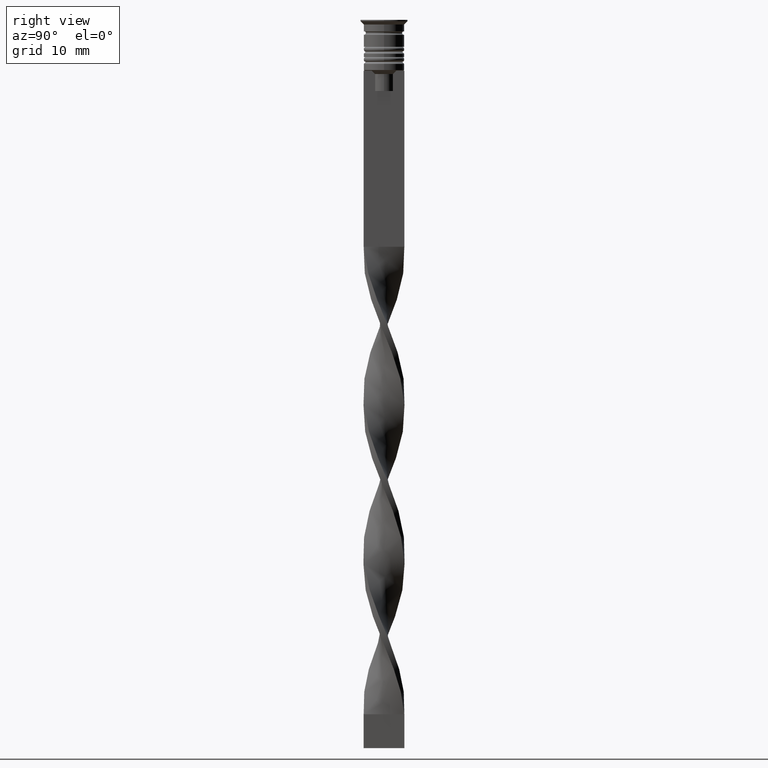
[diagram: clean part render]
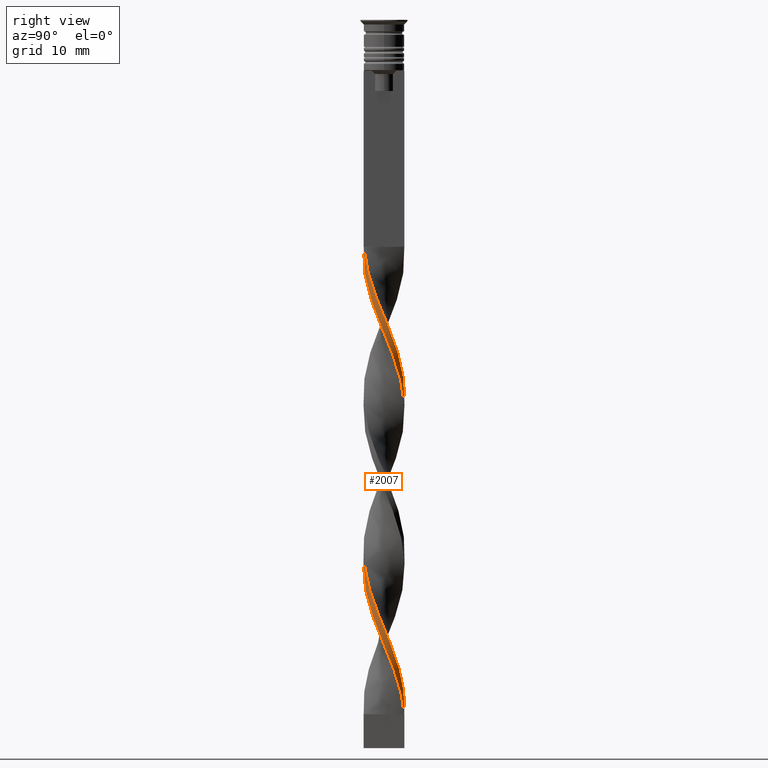
[diagram: same view with one face highlighted and labeled with its STEP entity id]
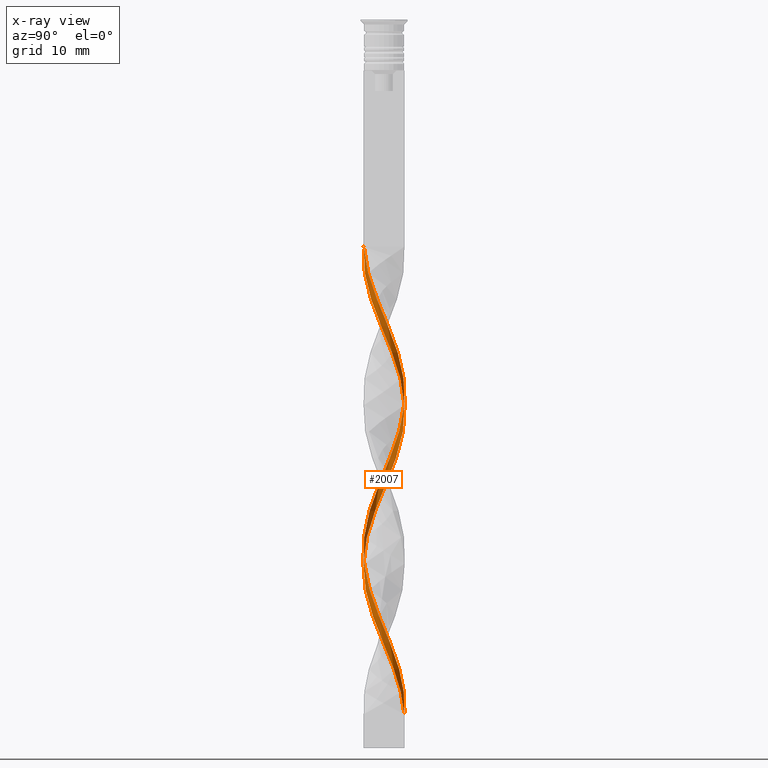
[diagram: x-ray of the same camera — body ghosted, the highlighted face saturated]
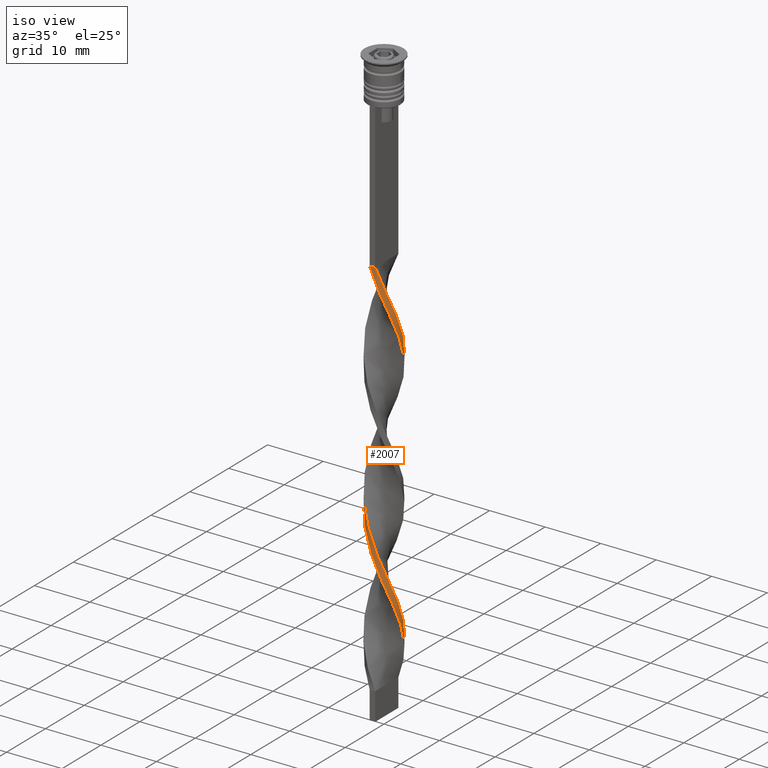
[diagram: same view with one face highlighted and labeled with its STEP entity id]
A machine part, right view. The second image highlights one B-rep face of the part: STEP entity #2007.
The next image is the same camera in x-ray: the body ghosted, the highlighted face saturated — about 0% of this face is hidden behind the body in this view.
A second angle (iso view) of the same face is appended — the face is thin or edge-on in the first view.
In plain terms, the highlighted face is a freeform B-spline surface patch.
Its self-contained STEP definition (entity closure, byte-faithful):
#3 = CARTESIAN_POINT ( 'NONE',  ( 0.8642659496667829400, 2.939289008388869640, -101.6153846153846132 ) ) ;
#20 = CARTESIAN_POINT ( 'NONE',  ( 2.363623348807936786, 1.913970915392904759, -97.19230769230770761 ) ) ;
#46 = CARTESIAN_POINT ( 'NONE',  ( -2.363623348807935898, 1.913970915392906536, -61.80769230769231370 ) ) ;
#56 = CARTESIAN_POINT ( 'NONE',  ( 2.752983971046547129, -1.292702307246639704, -40.57692307692308020 ) ) ;
#60 = CARTESIAN_POINT ( 'NONE',  ( -2.917858282166500672, -0.8579644778149938533, -68.88461538461538680 ) ) ;
#74 = VERTEX_POINT ( 'NONE', #251 ) ;
#75 = CARTESIAN_POINT ( 'NONE',  ( 3.022034030597048559, 0.5036723384328410935, -45.00000000000000711 ) ) ;
#81 = CARTESIAN_POINT ( 'NONE',  ( 0.2324760841496471830, -3.032483284421934933, -35.26923076923077360 ) ) ;
#108 = CARTESIAN_POINT ( 'NONE',  ( 0.8642659496667817187, -2.939289008388869640, -34.38461538461538680 ) ) ;
#113 = CARTESIAN_POINT ( 'NONE',  ( 2.596021493184669016, 1.626975080790204364, -50.30769230769231370 ) ) ;
#115 = EDGE_CURVE ( 'NONE', #360, #931, #577, .T. ) ;
#120 = CARTESIAN_POINT ( 'NONE',  ( 2.441810035334000872, 1.850388947743477397, -48.53846153846154721 ) ) ;
#122 = CARTESIAN_POINT ( 'NONE',  ( 1.928028413296782428, 2.380983398537112716, -96.30769230769232081 ) ) ;
#138 = CARTESIAN_POINT ( 'NONE',  ( -1.928028413296783983, -2.380983398537111828, -73.30769230769232081 ) ) ;
#144 = CARTESIAN_POINT ( 'NONE',  ( 0.1357340503332191695, 3.060710991611130360, -57.38461538461538680 ) ) ;
#151 = CARTESIAN_POINT ( 'NONE',  ( 2.441810035334000428, -1.850388947743478063, -87.46153846153849543 ) ) ;
#156 = CARTESIAN_POINT ( 'NONE',  ( 0.4999999999999998890, -3.000000000000000000, -79.50000000000001421 ) ) ;
#160 = CARTESIAN_POINT ( 'NONE',  ( 2.363623348807936786, 1.913970915392904759, -51.19230769230769340 ) ) ;
#163 = CARTESIAN_POINT ( 'NONE',  ( -2.596021493184669904, -1.626975080790202810, -73.30769230769232081 ) ) ;
#167 = CARTESIAN_POINT ( 'NONE',  ( 1.542569853484617060, -2.647046231879885081, -82.15384615384617462 ) ) ;
#171 = CARTESIAN_POINT ( 'NONE',  ( 2.813682533735953228, 1.212256617197150721, -92.76923076923075939 ) ) ;
#174 = CARTESIAN_POINT ( 'NONE',  ( -2.441810035333999540, 1.850388947743479395, -64.46153846153845279 ) ) ;
#182 = CARTESIAN_POINT ( 'NONE',  ( 2.917858282166500672, 0.8579644778149956297, -45.88461538461538680 ) ) ;
#187 = CARTESIAN_POINT ( 'NONE',  ( 0.2324760841496485153, 3.032483284421934489, -100.7307692307692406 ) ) ;
#193 = CARTESIAN_POINT ( 'NONE',  ( 2.813682533735953228, -1.212256617197151165, -89.23076923076924061 ) ) ;
#202 = CARTESIAN_POINT ( 'NONE',  ( 2.917858282166500228, -0.8579644778149968509, -90.11538461538462741 ) ) ;
#209 = CARTESIAN_POINT ( 'NONE',  ( 1.542569853484617948, 2.647046231879884193, -53.84615384615384670 ) ) ;
#212 = CARTESIAN_POINT ( 'NONE',  ( 0.1666666666666671293, 3.000000000000000000, -102.5000000000000142 ) ) ;
#251 = CARTESIAN_POINT ( 'NONE',  ( 0.4999999999999998890, -3.000000000000000000, -33.50000000000000000 ) ) ;
#257 = CARTESIAN_POINT ( 'NONE',  ( -1.203417901575701832, -2.793167620134376250, -77.73076923076924061 ) ) ;
#274 = CARTESIAN_POINT ( 'NONE',  ( 2.596021493184669016, 1.626975080790204142, -96.30769230769232081 ) ) ;
#311 = CARTESIAN_POINT ( 'NONE',  ( 2.363623348807935898, -1.913970915392906091, -38.80769230769230660 ) ) ;
#316 = CARTESIAN_POINT ( 'NONE',  ( -2.909946448908424799, 0.9584295337030754869, -64.46153846153845279 ) ) ;
#350 = CARTESIAN_POINT ( 'NONE',  ( 3.054755894246598658, -0.2341835458667260450, -43.23076923076922640 ) ) ;
#354 = VECTOR ( 'NONE', #462, 1000.000000000000000 ) ;
#356 = CARTESIAN_POINT ( 'NONE',  ( 2.982351171577512616, 0.5963065397848988924, -47.65384615384616041 ) ) ;
#360 = VERTEX_POINT ( 'NONE', #1284 ) ;
#372 = CARTESIAN_POINT ( 'NONE',  ( -2.131225204431203668, 2.200966749995606708, -60.92307692307691980 ) ) ;
#376 = CARTESIAN_POINT ( 'NONE',  ( 1.302196787976888093, -2.773203748730288520, -37.92307692307692690 ) ) ;
#382 = CARTESIAN_POINT ( 'NONE',  ( 3.038394962421823831, 0.1347443962830572051, -90.11538461538462741 ) ) ;
#384 = CARTESIAN_POINT ( 'NONE',  ( 0.6006862186325140351, 3.004255577232739949, -53.84615384615384670 ) ) ;
#391 = CARTESIAN_POINT ( 'NONE',  ( 1.615112600636834594, -2.577093573633701062, -38.80769230769230660 ) ) ;
#396 = CARTESIAN_POINT ( 'NONE',  ( 1.836897528957910364, -2.424006490937745451, -83.03846153846154721 ) ) ;
#401 = CARTESIAN_POINT ( 'NONE',  ( 3.022034030597048559, -0.5036723384328417596, -45.00000000000000711 ) ) ;
#409 = CARTESIAN_POINT ( 'NONE',  ( 2.184919224315390984, -2.115686173140296056, -40.57692307692308020 ) ) ;
#415 = CARTESIAN_POINT ( 'NONE',  ( 2.596021493184668572, -1.626975080790205919, -85.69230769230770761 ) ) ;
#421 = CARTESIAN_POINT ( 'NONE',  ( -2.441810035333999540, 1.850388947743479173, -64.46153846153845279 ) ) ;
#426 = CARTESIAN_POINT ( 'NONE',  ( 2.596021493184669016, 1.626975080790204364, -96.30769230769232081 ) ) ;
#431 = CARTESIAN_POINT ( 'NONE',  ( 2.184919224315391872, 2.115686173140295168, -49.42307692307693401 ) ) ;
#434 = CARTESIAN_POINT ( 'NONE',  ( 1.836897528957910364, -2.424006490937745451, -83.03846153846154721 ) ) ;
#438 = CARTESIAN_POINT ( 'NONE',  ( -1.203417901575701832, -2.793167620134376250, -77.73076923076924061 ) ) ;
#442 = CARTESIAN_POINT ( 'NONE',  ( 2.813682533735953228, 1.212256617197150721, -46.76923076923077360 ) ) ;
#447 = CARTESIAN_POINT ( 'NONE',  ( 0.9514415033047012304, 2.888729662981513346, -98.96153846153848122 ) ) ;
#454 = CARTESIAN_POINT ( 'NONE',  ( -1.928028413296780652, 2.380983398537114493, -62.69230769230770051 ) ) ;
#462 = DIRECTION ( 'NONE',  ( -1.000000000000000000, 0.000000000000000000, 0.000000000000000000 ) ) ;
#466 = CARTESIAN_POINT ( 'NONE',  ( 2.184919224315390984, -2.115686173140296056, -40.57692307692308020 ) ) ;
#475 = CARTESIAN_POINT ( 'NONE',  ( 0.5000000000000004441, 3.000000000000000000, -102.5000000000000142 ) ) ;
#488 = CARTESIAN_POINT ( 'NONE',  ( -2.131225204431204556, -2.200966749995605820, -75.07692307692308020 ) ) ;
#499 = CARTESIAN_POINT ( 'NONE',  ( -0.8642659496667833841, -2.939289008388869195, -78.61538461538461320 ) ) ;
#520 = CARTESIAN_POINT ( 'NONE',  ( 1.836897528957911030, 2.424006490937744562, -98.96153846153848122 ) ) ;
#540 = CARTESIAN_POINT ( 'NONE',  ( 0.9514415033047003423, -2.888729662981513790, -83.03846153846154721 ) ) ;
#573 = CARTESIAN_POINT ( 'NONE',  ( 2.131225204431203668, -2.200966749995606264, -37.92307692307692690 ) ) ;
#577 = B_SPLINE_CURVE_WITH_KNOTS ( 'NONE', 3,
 ( #3428, #1573, #212, #1274 ),
 .UNSPECIFIED., .F., .F.,
 ( 4, 4 ),
 ( 0.000000000000000000, 1.000000000000000000 ),
 .UNSPECIFIED. ) ;
#599 = CARTESIAN_POINT ( 'NONE',  ( 0.1357340503332165604, -3.060710991611130805, -78.61538461538461320 ) ) ;
#615 = CARTESIAN_POINT ( 'NONE',  ( 0.2324760841496485153, 3.032483284421934489, -54.73076923076923350 ) ) ;
#620 = CARTESIAN_POINT ( 'NONE',  ( 3.038394962421823386, -0.1347443962830584541, -45.88461538461538680 ) ) ;
#632 = CARTESIAN_POINT ( 'NONE',  ( -2.627746284534977050, -1.531322782470314170, -70.65384615384616041 ) ) ;
#648 = CARTESIAN_POINT ( 'NONE',  ( 1.203417901575699167, -2.793167620134377582, -81.26923076923077360 ) ) ;
#652 = CARTESIAN_POINT ( 'NONE',  ( 1.836897528957910364, -2.424006490937745451, -37.03846153846154010 ) ) ;
#662 = CARTESIAN_POINT ( 'NONE',  ( -2.752983971046547129, 1.292702307246639704, -63.57692307692308731 ) ) ;
#667 = CARTESIAN_POINT ( 'NONE',  ( 2.441810035334000872, 1.850388947743477175, -94.53846153846153300 ) ) ;
#672 = CARTESIAN_POINT ( 'NONE',  ( -0.1357340503332185033, -3.060710991611130360, -34.38461538461538680 ) ) ;
#676 = CARTESIAN_POINT ( 'NONE',  ( -2.917858282166500672, -0.8579644778149938533, -68.88461538461538680 ) ) ;
#679 = CARTESIAN_POINT ( 'NONE',  ( -1.615112600636834150, 2.577093573633701062, -61.80769230769231370 ) ) ;
#684 = CARTESIAN_POINT ( 'NONE',  ( -1.836897528957912584, -2.424006490937744118, -75.96153846153846700 ) ) ;
#692 = CARTESIAN_POINT ( 'NONE',  ( -0.9514415033047030068, -2.888729662981513346, -75.96153846153846700 ) ) ;
#694 = CARTESIAN_POINT ( 'NONE',  ( 0.4999999999999998890, -3.000000000000000000, -33.50000000000000000 ) ) ;
#697 = CARTESIAN_POINT ( 'NONE',  ( 2.627746284534977050, 1.531322782470313726, -93.65384615384617462 ) ) ;
#706 = CARTESIAN_POINT ( 'NONE',  ( 1.302196787976888759, 2.773203748730288076, -98.07692307692309441 ) ) ;
#711 = CARTESIAN_POINT ( 'NONE',  ( 1.615112600636835927, 2.577093573633700174, -97.19230769230770761 ) ) ;
#717 = CARTESIAN_POINT ( 'NONE',  ( 1.615112600636834594, -2.577093573633701062, -84.80769230769232081 ) ) ;
#726 = CARTESIAN_POINT ( 'NONE',  ( 0.8642659496667817187, -2.939289008388869640, -80.38461538461538680 ) ) ;
#732 = CARTESIAN_POINT ( 'NONE',  ( 2.909946448908426131, 0.9584295337030729334, -94.53846153846154721 ) ) ;
#750 = CARTESIAN_POINT ( 'NONE',  ( -1.615112600636834150, 2.577093573633701062, -61.80769230769231370 ) ) ;
#759 = CARTESIAN_POINT ( 'NONE',  ( -2.131225204431204556, -2.200966749995605820, -75.07692307692308020 ) ) ;
#796 = CARTESIAN_POINT ( 'NONE',  ( 0.6006862186325125919, -3.004255577232739949, -82.15384615384617462 ) ) ;
#817 = CARTESIAN_POINT ( 'NONE',  ( 0.5000000000000004441, 3.000000000000000000, -102.5000000000000142 ) ) ;
#839 = CARTESIAN_POINT ( 'NONE',  ( 2.909946448908425243, -0.9584295337030735995, -41.46153846153846700 ) ) ;
#857 = CARTESIAN_POINT ( 'NONE',  ( -0.9514415033047030068, -2.888729662981513346, -75.96153846153846700 ) ) ;
#871 = CARTESIAN_POINT ( 'NONE',  ( 2.909946448908425687, -0.9584295337030735995, -41.46153846153846700 ) ) ;
#876 = CARTESIAN_POINT ( 'NONE',  ( 2.363623348807935898, -1.913970915392906091, -38.80769230769230660 ) ) ;
#896 = CARTESIAN_POINT ( 'NONE',  ( 2.131225204431204556, 2.200966749995605820, -52.07692307692308020 ) ) ;
#900 = ORIENTED_EDGE ( 'NONE', *, *, #2523, .T. ) ;
#906 = CARTESIAN_POINT ( 'NONE',  ( 2.813682533735953228, 1.212256617197150721, -46.76923076923076650 ) ) ;
#923 = CARTESIAN_POINT ( 'NONE',  ( 2.627746284534977050, 1.531322782470313726, -47.65384615384616041 ) ) ;
#926 = CARTESIAN_POINT ( 'NONE',  ( 3.054755894246598658, 0.2341835458667255176, -46.76923076923076650 ) ) ;
#931 = VERTEX_POINT ( 'NONE', #1479 ) ;
#935 =( BOUNDED_CURVE ( )  B_SPLINE_CURVE ( 2, ( #2233, #1359, #2426, #1900, #2962, #573, #311, #2441, #56, #871, #3244, #2718, #2994, #2571, #182, #442, #923, #120, #431, #2509, #1176, #3315, #1494, #971, #3047, #1754, #2282, #3360, #987, #1245, #2314, #3377, #1505, #1983, #662, #1445, #2557, #1721, #3060, #1998, #676, #3096, #3076, #2034, #954, #138, #3330, #1481, #692, #3030, #2787, #1200, #156, #2248, #648, #167, #396, #1461, #2268, #415, #1227, #2527, #939, #1735, #382, #2820, #2803, #2832, #2546, #2296, #1214, #2016, #3345, #706, #1765, #1707, #2772, #2115, #3179 ),
 .UNSPECIFIED., .F., .T. ) 
 B_SPLINE_CURVE_WITH_KNOTS ( ( 3, 2, 2, 2, 2, 2, 2, 2, 2, 2, 2, 2, 2, 2, 2, 2, 2, 2, 2, 2, 2, 2, 2, 2, 2, 2, 2, 2, 2, 2, 2, 2, 2, 2, 2, 2, 2, 2, 2, 3 ),
 ( 0.000000000000000000, 0.01923076923076923184, 0.03846153846153846367, 0.05769230769230768857, 0.07692307692307692735, 0.09615384615384615918, 0.1153846153846153771, 0.1346153846153846090, 0.1538461538461538547, 0.1730769230769230449, 0.1923076923076923184, 0.2115384615384615363, 0.2307692307692307543, 0.2500000000000000000, 0.2692307692307692180, 0.2884615384615384359, 0.3076923076923077094, 0.3269230769230769273, 0.3461538461538460898, 0.3653846153846153633, 0.3846153846153846367, 0.4038461538461539102, 0.4230769230769230727, 0.4423076923076922906, 0.4615384615384615086, 0.4807692307692307820, 0.5000000000000000000, 0.5192307692307692735, 0.5384615384615384359, 0.5576923076923077094, 0.5769230769230768718, 0.5961538461538461453, 0.6153846153846154188, 0.6346153846153845812, 0.6538461538461538547, 0.6730769230769230171, 0.6923076923076921796, 0.7115384615384615641, 0.7307692307692307265, 0.7500000000000000000 ),
 .UNSPECIFIED. ) 
 CURVE ( )  GEOMETRIC_REPRESENTATION_ITEM ( )  RATIONAL_B_SPLINE_CURVE ( ( 1.000000000000000000, 0.9927088740980539727, 1.000000000000000000, 0.9927088740980539727, 1.000000000000000000, 0.9927088740980539727, 1.000000000000000000, 0.9927088740980539727, 1.000000000000000000, 0.9927088740980539727, 1.000000000000000000, 0.9927088740980539727, 1.000000000000000000, 0.9927088740980539727, 1.000000000000000000, 0.9927088740980539727, 1.000000000000000000, 0.9927088740980539727, 1.000000000000000000, 0.9927088740980539727, 1.000000000000000000, 0.9927088740980539727, 1.000000000000000000, 0.9927088740980539727, 1.000000000000000000, 0.9927088740980539727, 1.000000000000000000, 0.9927088740980539727, 1.000000000000000000, 0.9927088740980539727, 1.000000000000000000, 0.9927088740980539727, 1.000000000000000000, 0.9927088740980539727, 1.000000000000000000, 0.9927088740980539727, 1.000000000000000000, 0.9927088740980539727, 1.000000000000000000, 0.9927088740980539727, 1.000000000000000000, 0.9927088740980539727, 1.000000000000000000, 0.9927088740980539727, 1.000000000000000000, 0.9927088740980539727, 1.000000000000000000, 0.9927088740980539727, 1.000000000000000000, 0.9927088740980539727, 1.000000000000000000, 0.9927088740980539727, 1.000000000000000000, 0.9927088740980539727, 1.000000000000000000, 0.9927088740980539727, 1.000000000000000000, 0.9927088740980539727, 1.000000000000000000, 0.9927088740980539727, 1.000000000000000000, 0.9927088740980539727, 1.000000000000000000, 0.9927088740980539727, 1.000000000000000000, 0.9927088740980539727, 1.000000000000000000, 0.9927088740980539727, 1.000000000000000000, 0.9927088740980539727, 1.000000000000000000, 0.9927088740980539727, 1.000000000000000000, 0.9927088740980539727, 1.000000000000000000, 0.9927088740980539727, 1.000000000000000000, 0.9927088740980539727, 1.000000000000000000 ) ) 
 REPRESENTATION_ITEM ( '' )  );
#939 = CARTESIAN_POINT ( 'NONE',  ( 2.982351171577512172, -0.5963065397849001137, -88.34615384615385381 ) ) ;
#944 = CARTESIAN_POINT ( 'NONE',  ( -0.2324760841496461561, 3.032483284421934933, -58.26923076923077360 ) ) ;
#950 = CARTESIAN_POINT ( 'NONE',  ( -1.302196787976887871, 2.773203748730288964, -60.92307692307692690 ) ) ;
#954 = CARTESIAN_POINT ( 'NONE',  ( -2.184919224315392317, -2.115686173140294724, -72.42307692307691980 ) ) ;
#957 = CARTESIAN_POINT ( 'NONE',  ( -0.1357340503332169768, 3.060710991611130360, -101.6153846153846132 ) ) ;
#964 = CARTESIAN_POINT ( 'NONE',  ( 0.2324760841496471830, -3.032483284421934933, -81.26923076923077360 ) ) ;
#971 = CARTESIAN_POINT ( 'NONE',  ( 0.6006862186325140351, 3.004255577232739949, -53.84615384615384670 ) ) ;
#977 = CARTESIAN_POINT ( 'NONE',  ( 2.752983971046547129, -1.292702307246639704, -86.57692307692308020 ) ) ;
#982 = CARTESIAN_POINT ( 'NONE',  ( -0.2324760841496461561, 3.032483284421934933, -58.26923076923077360 ) ) ;
#987 = CARTESIAN_POINT ( 'NONE',  ( -1.203417901575698279, 2.793167620134377582, -58.26923076923077360 ) ) ;
#990 = CARTESIAN_POINT ( 'NONE',  ( 2.909946448908425243, -0.9584295337030735995, -87.46153846153849543 ) ) ;
#995 = CARTESIAN_POINT ( 'NONE',  ( 1.302196787976888093, -2.773203748730288520, -83.92307692307693401 ) ) ;
#1003 = CARTESIAN_POINT ( 'NONE',  ( 3.038394962421823386, -0.1347443962830584541, -91.88461538461540101 ) ) ;
#1008 = CARTESIAN_POINT ( 'NONE',  ( -2.813682533735953228, 1.212256617197151165, -66.23076923076922640 ) ) ;
#1052 = CARTESIAN_POINT ( 'NONE',  ( -2.917858282166500228, 0.8579644778149978501, -67.11538461538461320 ) ) ;
#1072 = CARTESIAN_POINT ( 'NONE',  ( 2.441810035334000428, -1.850388947743477841, -87.46153846153849543 ) ) ;
#1096 = CARTESIAN_POINT ( 'NONE',  ( -2.752983971046547129, 1.292702307246639704, -63.57692307692308731 ) ) ;
#1111 = CARTESIAN_POINT ( 'NONE',  ( -1.203417901575698279, 2.793167620134377582, -58.26923076923077360 ) ) ;
#1133 = CARTESIAN_POINT ( 'NONE',  ( 3.038394962421823831, 0.1347443962830572051, -44.11538461538462030 ) ) ;
#1138 = CARTESIAN_POINT ( 'NONE',  ( 2.813682533735953228, -1.212256617197151165, -43.23076923076923350 ) ) ;
#1166 = CARTESIAN_POINT ( 'NONE',  ( 1.203417901575699167, -2.793167620134377582, -35.26923076923077360 ) ) ;
#1176 = CARTESIAN_POINT ( 'NONE',  ( 1.615112600636835927, 2.577093573633700174, -51.19230769230769340 ) ) ;
#1181 = CARTESIAN_POINT ( 'NONE',  ( 2.813682533735953228, -1.212256617197151165, -43.23076923076922640 ) ) ;
#1200 = CARTESIAN_POINT ( 'NONE',  ( 0.1357340503332165882, -3.060710991611130805, -78.61538461538461320 ) ) ;
#1204 = CARTESIAN_POINT ( 'NONE',  ( 2.909946448908425687, 0.9584295337030729334, -48.53846153846154010 ) ) ;
#1209 = ORIENTED_EDGE ( 'NONE', *, *, #1273, .T. ) ;
#1210 = CARTESIAN_POINT ( 'NONE',  ( 2.627746284534976606, -1.531322782470315058, -88.34615384615385381 ) ) ;
#1214 = CARTESIAN_POINT ( 'NONE',  ( 2.184919224315391872, 2.115686173140295168, -95.42307692307693401 ) ) ;
#1219 = CARTESIAN_POINT ( 'NONE',  ( 1.542569853484617060, -2.647046231879885081, -82.15384615384617462 ) ) ;
#1222 = CARTESIAN_POINT ( 'NONE',  ( 0.9514415033047003423, -2.888729662981513790, -83.03846153846154721 ) ) ;
#1227 = CARTESIAN_POINT ( 'NONE',  ( 2.752983971046547129, -1.292702307246639704, -86.57692307692308020 ) ) ;
#1232 = CARTESIAN_POINT ( 'NONE',  ( 3.022034030597048559, 0.5036723384328410935, -91.00000000000001421 ) ) ;
#1238 = CARTESIAN_POINT ( 'NONE',  ( -2.184919224315390984, 2.115686173140296056, -63.57692307692308731 ) ) ;
#1245 = CARTESIAN_POINT ( 'NONE',  ( -1.542569853484615727, 2.647046231879885525, -59.15384615384616041 ) ) ;
#1251 = CARTESIAN_POINT ( 'NONE',  ( -0.5000000000000001110, -3.000000000000000000, -33.50000000000000000 ) ) ;
#1256 = CARTESIAN_POINT ( 'NONE',  ( 2.917858282166500228, -0.8579644778149968509, -90.11538461538462741 ) ) ;
#1264 = CARTESIAN_POINT ( 'NONE',  ( 1.542569853484618170, 2.647046231879884193, -99.84615384615385381 ) ) ;
#1271 = CARTESIAN_POINT ( 'NONE',  ( 1.203417901575700499, 2.793167620134376694, -54.73076923076923350 ) ) ;
#1273 = EDGE_CURVE ( 'NONE', #74, #2615, #1782, .T. ) ;
#1274 = CARTESIAN_POINT ( 'NONE',  ( 0.5000000000000004441, 3.000000000000000000, -102.5000000000000142 ) ) ;
#1283 =( BOUNDED_CURVE ( )  B_SPLINE_CURVE ( 2, ( #2539, #672, #81, #1977, #2746, #376, #391, #1439, #409, #1945, #3042, #1138, #2211, #3004, #620, #1472, #356, #2489, #2226, #113, #3292, #896, #3387, #209, #1271, #3402, #3138, #3372, #982, #2278, #2043, #950, #750, #454, #1238, #174, #2338, #1008, #2072, #2584, #3340, #2306, #2011, #3104, #1811, #163, #2878, #488, #684, #2324, #438, #1548, #3069, #1775, #964, #2842, #1222, #995, #717, #1501, #1516, #151, #1210, #193, #1256, #2565, #2057, #1745, #3118, #732, #2815, #426, #1490, #1760, #2554, #2291, #1792, #2860, #475 ),
 .UNSPECIFIED., .F., .T. ) 
 B_SPLINE_CURVE_WITH_KNOTS ( ( 3, 2, 2, 2, 2, 2, 2, 2, 2, 2, 2, 2, 2, 2, 2, 2, 2, 2, 2, 2, 2, 2, 2, 2, 2, 2, 2, 2, 2, 2, 2, 2, 2, 2, 2, 2, 2, 2, 2, 3 ),
 ( 0.000000000000000000, 0.01923076923076923184, 0.03846153846153846367, 0.05769230769230768857, 0.07692307692307692735, 0.09615384615384615918, 0.1153846153846153771, 0.1346153846153846090, 0.1538461538461538547, 0.1730769230769230449, 0.1923076923076923184, 0.2115384615384615363, 0.2307692307692307543, 0.2500000000000000000, 0.2692307692307692180, 0.2884615384615384359, 0.3076923076923077094, 0.3269230769230769273, 0.3461538461538460898, 0.3653846153846153633, 0.3846153846153846367, 0.4038461538461539102, 0.4230769230769230727, 0.4423076923076922906, 0.4615384615384615086, 0.4807692307692307820, 0.5000000000000000000, 0.5192307692307692735, 0.5384615384615384359, 0.5576923076923077094, 0.5769230769230768718, 0.5961538461538461453, 0.6153846153846154188, 0.6346153846153845812, 0.6538461538461538547, 0.6730769230769230171, 0.6923076923076921796, 0.7115384615384615641, 0.7307692307692307265, 0.7500000000000000000 ),
 .UNSPECIFIED. ) 
 CURVE ( )  GEOMETRIC_REPRESENTATION_ITEM ( )  RATIONAL_B_SPLINE_CURVE ( ( 1.000000000000000000, 0.9927088740980539727, 1.000000000000000000, 0.9927088740980539727, 1.000000000000000000, 0.9927088740980539727, 1.000000000000000000, 0.9927088740980539727, 1.000000000000000000, 0.9927088740980539727, 1.000000000000000000, 0.9927088740980539727, 1.000000000000000000, 0.9927088740980539727, 1.000000000000000000, 0.9927088740980539727, 1.000000000000000000, 0.9927088740980539727, 1.000000000000000000, 0.9927088740980539727, 1.000000000000000000, 0.9927088740980539727, 1.000000000000000000, 0.9927088740980539727, 1.000000000000000000, 0.9927088740980539727, 1.000000000000000000, 0.9927088740980539727, 1.000000000000000000, 0.9927088740980539727, 1.000000000000000000, 0.9927088740980539727, 1.000000000000000000, 0.9927088740980539727, 1.000000000000000000, 0.9927088740980539727, 1.000000000000000000, 0.9927088740980539727, 1.000000000000000000, 0.9927088740980539727, 1.000000000000000000, 0.9927088740980539727, 1.000000000000000000, 0.9927088740980539727, 1.000000000000000000, 0.9927088740980539727, 1.000000000000000000, 0.9927088740980539727, 1.000000000000000000, 0.9927088740980539727, 1.000000000000000000, 0.9927088740980539727, 1.000000000000000000, 0.9927088740980539727, 1.000000000000000000, 0.9927088740980539727, 1.000000000000000000, 0.9927088740980539727, 1.000000000000000000, 0.9927088740980539727, 1.000000000000000000, 0.9927088740980539727, 1.000000000000000000, 0.9927088740980539727, 1.000000000000000000, 0.9927088740980539727, 1.000000000000000000, 0.9927088740980539727, 1.000000000000000000, 0.9927088740980539727, 1.000000000000000000, 0.9927088740980539727, 1.000000000000000000, 0.9927088740980539727, 1.000000000000000000, 0.9927088740980539727, 1.000000000000000000, 0.9927088740980539727, 1.000000000000000000 ) ) 
 REPRESENTATION_ITEM ( '' )  );
#1284 = CARTESIAN_POINT ( 'NONE',  ( -0.4999999999999995559, 3.000000000000000000, -102.5000000000000142 ) ) ;
#1303 = CARTESIAN_POINT ( 'NONE',  ( 2.627746284534976606, -1.531322782470315058, -88.34615384615385381 ) ) ;
#1321 = CARTESIAN_POINT ( 'NONE',  ( -2.363623348807936786, -1.913970915392904315, -74.19230769230769340 ) ) ;
#1339 = CARTESIAN_POINT ( 'NONE',  ( -1.836897528957912584, -2.424006490937744118, -75.96153846153846700 ) ) ;
#1359 = CARTESIAN_POINT ( 'NONE',  ( 0.8642659496667816077, -2.939289008388869640, -34.38461538461538680 ) ) ;
#1397 = ORIENTED_EDGE ( 'NONE', *, *, #2224, .F. ) ;
#1419 = CARTESIAN_POINT ( 'NONE',  ( -2.982351171577512172, 0.5963065397849003357, -65.34615384615385381 ) ) ;
#1434 = CARTESIAN_POINT ( 'NONE',  ( -1.302196787976888759, -2.773203748730288076, -75.07692307692308020 ) ) ;
#1439 = CARTESIAN_POINT ( 'NONE',  ( 1.928028413296781762, -2.380983398537114049, -39.69230769230769340 ) ) ;
#1445 = CARTESIAN_POINT ( 'NONE',  ( -2.909946448908425243, 0.9584295337030753759, -64.46153846153845279 ) ) ;
#1448 = CARTESIAN_POINT ( 'NONE',  ( -1.542569853484615727, 2.647046231879885525, -59.15384615384616041 ) ) ;
#1461 = CARTESIAN_POINT ( 'NONE',  ( 2.131225204431203668, -2.200966749995606264, -83.92307692307693401 ) ) ;
#1465 = CARTESIAN_POINT ( 'NONE',  ( 3.038394962421823386, -0.1347443962830584541, -45.88461538461538680 ) ) ;
#1472 = CARTESIAN_POINT ( 'NONE',  ( 3.054755894246598658, 0.2341835458667255176, -46.76923076923077360 ) ) ;
#1479 = CARTESIAN_POINT ( 'NONE',  ( 0.5000000000000004441, 3.000000000000000000, -102.5000000000000142 ) ) ;
#1481 = CARTESIAN_POINT ( 'NONE',  ( -1.302196787976888759, -2.773203748730288076, -75.07692307692308020 ) ) ;
#1485 = CARTESIAN_POINT ( 'NONE',  ( 2.596021493184669016, 1.626975080790204142, -50.30769230769232081 ) ) ;
#1490 = CARTESIAN_POINT ( 'NONE',  ( 2.363623348807936786, 1.913970915392904759, -97.19230769230770761 ) ) ;
#1494 = CARTESIAN_POINT ( 'NONE',  ( 0.9514415033047012304, 2.888729662981513346, -52.96153846153845990 ) ) ;
#1498 = CARTESIAN_POINT ( 'NONE',  ( 1.615112600636834594, -2.577093573633701062, -38.80769230769230660 ) ) ;
#1501 = CARTESIAN_POINT ( 'NONE',  ( 1.928028413296781762, -2.380983398537114049, -85.69230769230770761 ) ) ;
#1505 = CARTESIAN_POINT ( 'NONE',  ( -2.363623348807935898, 1.913970915392906536, -61.80769230769231370 ) ) ;
#1509 = CARTESIAN_POINT ( 'NONE',  ( 0.6006862186325125919, -3.004255577232739949, -36.15384615384615330 ) ) ;
#1516 = CARTESIAN_POINT ( 'NONE',  ( 2.184919224315390984, -2.115686173140296056, -86.57692307692308020 ) ) ;
#1548 = CARTESIAN_POINT ( 'NONE',  ( -0.8642659496667834951, -2.939289008388869195, -78.61538461538461320 ) ) ;
#1558 = CARTESIAN_POINT ( 'NONE',  ( 2.752983971046547573, 1.292702307246638815, -95.42307692307693401 ) ) ;
#1573 = CARTESIAN_POINT ( 'NONE',  ( -0.1666666666666662411, 3.000000000000000000, -102.5000000000000142 ) ) ;
#1601 = CARTESIAN_POINT ( 'NONE',  ( 1.615112600636834594, -2.577093573633701062, -84.80769230769232081 ) ) ;
#1643 = CARTESIAN_POINT ( 'NONE',  ( -3.054755894246598658, 0.2341835458667258230, -66.23076923076922640 ) ) ;
#1661 = CARTESIAN_POINT ( 'NONE',  ( 0.4999999999999998890, -3.000000000000000000, -79.50000000000001421 ) ) ;
#1674 = CARTESIAN_POINT ( 'NONE',  ( -3.022034030597048559, -0.5036723384328407604, -68.00000000000000000 ) ) ;
#1693 = CARTESIAN_POINT ( 'NONE',  ( -2.184919224315392317, -2.115686173140294724, -72.42307692307691980 ) ) ;
#1707 = CARTESIAN_POINT ( 'NONE',  ( 0.6006862186325140351, 3.004255577232739949, -99.84615384615386802 ) ) ;
#1721 = CARTESIAN_POINT ( 'NONE',  ( -3.054755894246598658, 0.2341835458667258507, -66.23076923076922640 ) ) ;
#1724 = CARTESIAN_POINT ( 'NONE',  ( 0.5000000000000004441, 3.000000000000000000, -56.50000000000000711 ) ) ;
#1735 = CARTESIAN_POINT ( 'NONE',  ( 3.054755894246598658, -0.2341835458667260728, -89.23076923076924061 ) ) ;
#1740 = CARTESIAN_POINT ( 'NONE',  ( -2.184919224315390984, 2.115686173140296056, -63.57692307692308731 ) ) ;
#1745 = CARTESIAN_POINT ( 'NONE',  ( 3.054755894246598658, 0.2341835458667255176, -92.76923076923077360 ) ) ;
#1754 = CARTESIAN_POINT ( 'NONE',  ( -0.1357340503332169490, 3.060710991611130360, -55.61538461538462741 ) ) ;
#1757 = CARTESIAN_POINT ( 'NONE',  ( 2.982351171577512172, -0.5963065397849001137, -88.34615384615385381 ) ) ;
#1760 = CARTESIAN_POINT ( 'NONE',  ( 2.131225204431204556, 2.200966749995605820, -98.07692307692309441 ) ) ;
#1765 = CARTESIAN_POINT ( 'NONE',  ( 0.9514415033047012304, 2.888729662981513346, -98.96153846153848122 ) ) ;
#1769 = CARTESIAN_POINT ( 'NONE',  ( 2.917858282166500672, 0.8579644778149956297, -91.88461538461540101 ) ) ;
#1775 = CARTESIAN_POINT ( 'NONE',  ( -0.1357340503332185033, -3.060710991611130360, -80.38461538461538680 ) ) ;
#1782 = LINE ( 'NONE', #694, #354 ) ;
#1784 = CARTESIAN_POINT ( 'NONE',  ( 3.038394962421823831, 0.1347443962830572051, -90.11538461538462741 ) ) ;
#1792 = CARTESIAN_POINT ( 'NONE',  ( 1.203417901575700499, 2.793167620134376694, -100.7307692307692406 ) ) ;
#1811 = CARTESIAN_POINT ( 'NONE',  ( -2.752983971046547573, -1.292702307246638149, -72.42307692307691980 ) ) ;
#1838 = CARTESIAN_POINT ( 'NONE',  ( 2.982351171577512616, 0.5963065397848988924, -93.65384615384617462 ) ) ;
#1900 = CARTESIAN_POINT ( 'NONE',  ( 1.542569853484617060, -2.647046231879885081, -36.15384615384615330 ) ) ;
#1905 = CARTESIAN_POINT ( 'NONE',  ( -0.1357340503332169768, 3.060710991611130360, -55.61538461538462741 ) ) ;
#1923 = CARTESIAN_POINT ( 'NONE',  ( -0.6006862186325142572, -3.004255577232739949, -76.84615384615386802 ) ) ;
#1945 = CARTESIAN_POINT ( 'NONE',  ( 2.441810035334000428, -1.850388947743478063, -41.46153846153846700 ) ) ;
#1955 = CARTESIAN_POINT ( 'NONE',  ( 0.4999999999999998890, -3.000000000000000000, -33.50000000000000000 ) ) ;
#1972 = CARTESIAN_POINT ( 'NONE',  ( 2.627746284534977050, 1.531322782470313726, -47.65384615384616041 ) ) ;
#1977 = CARTESIAN_POINT ( 'NONE',  ( 0.6006862186325125919, -3.004255577232739949, -36.15384615384615330 ) ) ;
#1983 = CARTESIAN_POINT ( 'NONE',  ( -2.596021493184667683, 1.626975080790206141, -62.69230769230770051 ) ) ;
#1987 = CARTESIAN_POINT ( 'NONE',  ( 0.8642659496667829400, 2.939289008388869640, -55.61538461538462741 ) ) ;
#1998 = CARTESIAN_POINT ( 'NONE',  ( -3.022034030597048559, -0.5036723384328408715, -68.00000000000000000 ) ) ;
#2004 = CARTESIAN_POINT ( 'NONE',  ( -0.9514415033047003423, 2.888729662981513790, -60.03846153846154010 ) ) ;
#2007 = ADVANCED_FACE ( 'NONE', ( #3036 ), #2361, .T. ) ;
#2011 = CARTESIAN_POINT ( 'NONE',  ( -2.982351171577512616, -0.5963065397848993365, -70.65384615384616041 ) ) ;
#2016 = CARTESIAN_POINT ( 'NONE',  ( 1.928028413296782428, 2.380983398537112716, -96.30769230769232081 ) ) ;
#2021 = CARTESIAN_POINT ( 'NONE',  ( -2.627746284534976162, 1.531322782470315280, -65.34615384615385381 ) ) ;
#2034 = CARTESIAN_POINT ( 'NONE',  ( -2.441810035334001761, -1.850388947743476509, -71.53846153846154721 ) ) ;
#2037 = CARTESIAN_POINT ( 'NONE',  ( 0.2324760841496471830, -3.032483284421934933, -35.26923076923077360 ) ) ;
#2043 = CARTESIAN_POINT ( 'NONE',  ( -0.9514415033047003423, 2.888729662981513790, -60.03846153846154010 ) ) ;
#2052 = CARTESIAN_POINT ( 'NONE',  ( 3.054755894246598658, -0.2341835458667260450, -89.23076923076922640 ) ) ;
#2057 = CARTESIAN_POINT ( 'NONE',  ( 3.038394962421823386, -0.1347443962830584541, -91.88461538461540101 ) ) ;
#2064 = CARTESIAN_POINT ( 'NONE',  ( -2.752983971046547573, -1.292702307246638149, -72.42307692307691980 ) ) ;
#2068 = ORIENTED_EDGE ( 'NONE', *, *, #115, .F. ) ;
#2072 = CARTESIAN_POINT ( 'NONE',  ( -2.917858282166500228, 0.8579644778149978501, -67.11538461538461320 ) ) ;
#2084 = CARTESIAN_POINT ( 'NONE',  ( 0.2324760841496471830, -3.032483284421934933, -81.26923076923077360 ) ) ;
#2102 = CARTESIAN_POINT ( 'NONE',  ( -0.1357340503332185311, -3.060710991611130360, -80.38461538461538680 ) ) ;
#2107 = EDGE_LOOP ( 'NONE', ( #1209, #900, #2068, #1397 ) ) ;
#2115 = CARTESIAN_POINT ( 'NONE',  ( -0.1357340503332169490, 3.060710991611130360, -101.6153846153846274 ) ) ;
#2118 = CARTESIAN_POINT ( 'NONE',  ( -3.022034030597048559, 0.5036723384328420927, -68.00000000000000000 ) ) ;
#2139 = CARTESIAN_POINT ( 'NONE',  ( 3.054755894246598658, 0.2341835458667255176, -92.76923076923075939 ) ) ;
#2164 = CARTESIAN_POINT ( 'NONE',  ( 2.596021493184668572, -1.626975080790205697, -39.69230769230769340 ) ) ;
#2165 = CARTESIAN_POINT ( 'NONE',  ( -0.5000000000000001110, -3.000000000000000000, -33.50000000000000000 ) ) ;
#2182 = CARTESIAN_POINT ( 'NONE',  ( -2.813682533735954117, -1.212256617197149833, -69.76923076923077360 ) ) ;
#2204 = CARTESIAN_POINT ( 'NONE',  ( 0.9514415033047012304, 2.888729662981513346, -52.96153846153845990 ) ) ;
#2211 = CARTESIAN_POINT ( 'NONE',  ( 2.917858282166500228, -0.8579644778149968509, -44.11538461538462030 ) ) ;
#2221 = CARTESIAN_POINT ( 'NONE',  ( -0.4999999999999995559, 3.000000000000000000, -56.50000000000000711 ) ) ;
#2224 = EDGE_CURVE ( 'NONE', #74, #360, #935, .T. ) ;
#2226 = CARTESIAN_POINT ( 'NONE',  ( 2.752983971046547573, 1.292702307246638815, -49.42307692307693401 ) ) ;
#2233 = CARTESIAN_POINT ( 'NONE',  ( 0.4999999999999998890, -3.000000000000000000, -33.50000000000000000 ) ) ;
#2236 = CARTESIAN_POINT ( 'NONE',  ( 2.917858282166500672, 0.8579644778149956297, -45.88461538461538680 ) ) ;
#2248 = CARTESIAN_POINT ( 'NONE',  ( 0.8642659496667816077, -2.939289008388869640, -80.38461538461538680 ) ) ;
#2253 = CARTESIAN_POINT ( 'NONE',  ( 2.131225204431204556, 2.200966749995605820, -52.07692307692308020 ) ) ;
#2268 = CARTESIAN_POINT ( 'NONE',  ( 2.363623348807935898, -1.913970915392906091, -84.80769230769232081 ) ) ;
#2273 = CARTESIAN_POINT ( 'NONE',  ( 1.203417901575700499, 2.793167620134376694, -54.73076923076923350 ) ) ;
#2278 = CARTESIAN_POINT ( 'NONE',  ( -0.6006862186325113706, 3.004255577232740393, -59.15384615384616041 ) ) ;
#2282 = CARTESIAN_POINT ( 'NONE',  ( -0.4999999999999995559, 3.000000000000000000, -56.50000000000000711 ) ) ;
#2287 = CARTESIAN_POINT ( 'NONE',  ( -0.6006862186325113706, 3.004255577232740393, -59.15384615384616041 ) ) ;
#2291 = CARTESIAN_POINT ( 'NONE',  ( 1.542569853484617948, 2.647046231879884193, -99.84615384615386802 ) ) ;
#2296 = CARTESIAN_POINT ( 'NONE',  ( 2.441810035334000872, 1.850388947743477397, -94.53846153846154721 ) ) ;
#2300 = CARTESIAN_POINT ( 'NONE',  ( 1.302196787976887871, -2.773203748730288520, -37.92307692307692690 ) ) ;
#2306 = CARTESIAN_POINT ( 'NONE',  ( -3.054755894246599102, -0.2341835458667243242, -69.76923076923077360 ) ) ;
#2314 = CARTESIAN_POINT ( 'NONE',  ( -1.836897528957910364, 2.424006490937745451, -60.03846153846154010 ) ) ;
#2319 = CARTESIAN_POINT ( 'NONE',  ( 1.836897528957911030, 2.424006490937744562, -52.96153846153845990 ) ) ;
#2324 = CARTESIAN_POINT ( 'NONE',  ( -1.542569853484618170, -2.647046231879884193, -76.84615384615386802 ) ) ;
#2332 = CARTESIAN_POINT ( 'NONE',  ( -2.596021493184669904, -1.626975080790202810, -73.30769230769232081 ) ) ;
#2338 = CARTESIAN_POINT ( 'NONE',  ( -2.627746284534976162, 1.531322782470315280, -65.34615384615385381 ) ) ;
#2346 = CARTESIAN_POINT ( 'NONE',  ( -2.982351171577512616, -0.5963065397848993365, -70.65384615384616041 ) ) ;
#2361 =( BOUNDED_SURFACE ( )  B_SPLINE_SURFACE ( 1, 2, ( 
 ( #1955, #108, #1166, #3302, #652, #3274, #876, #2164, #2999, #839, #2775, #350, #1133, #75, #2236, #906, #1972, #2483, #3231, #2460, #3014, #2498, #2204, #384, #615, #1905, #2221, #2445, #1111, #1448, #2967, #372, #46, #2724, #1096, #316, #1419, #1643, #2708, #1674, #60, #2182, #632, #2741, #1693, #2760, #3247, #1434, #857, #1923, #2984, #599, #1661, #726, #2576, #1219, #434, #2561, #2823, #3083, #977, #990, #1757, #2052, #1784, #1232, #1769, #171, #697, #667, #2514, #122, #711, #2810, #447, #3334, #187, #957, #3050 ),
 ( #1251, #2790, #2037, #1509, #2532, #2300, #1498, #2837, #466, #3112, #2852, #1181, #3381, #401, #1465, #926, #3099, #1204, #2550, #1485, #160, #2253, #2319, #3319, #2273, #1987, #1724, #144, #944, #2287, #2004, #3064, #679, #3349, #1740, #421, #2021, #3366, #1052, #2118, #2927, #3183, #2346, #3396, #2064, #2332, #1321, #759, #1339, #3129, #257, #499, #2902, #2102, #2084, #796, #540, #2385, #1601, #2668, #2403, #1072, #1303, #2371, #202, #3434, #1003, #2139, #1838, #2628, #1558, #274, #20, #3209, #520, #1264, #2886, #3, #817 ) ),
 .UNSPECIFIED., .F., .F., .F. ) 
 B_SPLINE_SURFACE_WITH_KNOTS ( ( 2, 2 ),
 ( 3, 2, 2, 2, 2, 2, 2, 2, 2, 2, 2, 2, 2, 2, 2, 2, 2, 2, 2, 2, 2, 2, 2, 2, 2, 2, 2, 2, 2, 2, 2, 2, 2, 2, 2, 2, 2, 2, 2, 3 ),
 ( 0.000000000000000000, 1.000000000000000000 ),
 ( 0.000000000000000000, 0.01923076923076923184, 0.03846153846153846367, 0.05769230769230769551, 0.07692307692307692735, 0.09615384615384615918, 0.1153846153846153910, 0.1346153846153846090, 0.1538461538461538547, 0.1730769230769230727, 0.1923076923076923184, 0.2115384615384615363, 0.2307692307692307820, 0.2500000000000000000, 0.2692307692307692180, 0.2884615384615384359, 0.3076923076923077094, 0.3269230769230769273, 0.3461538461538461453, 0.3653846153846153633, 0.3846153846153846367, 0.4038461538461538547, 0.4230769230769230727, 0.4423076923076922906, 0.4615384615384615641, 0.4807692307692307820, 0.5000000000000000000, 0.5192307692307692735, 0.5384615384615384359, 0.5576923076923077094, 0.5769230769230768718, 0.5961538461538461453, 0.6153846153846154188, 0.6346153846153845812, 0.6538461538461538547, 0.6730769230769231282, 0.6923076923076922906, 0.7115384615384615641, 0.7307692307692307265, 0.7500000000000000000 ),
 .UNSPECIFIED. ) 
 GEOMETRIC_REPRESENTATION_ITEM ( )  RATIONAL_B_SPLINE_SURFACE ( (
 ( 1.000000000000000000, 0.9927088740980539727, 1.000000000000000000, 0.9927088740980539727, 1.000000000000000000, 0.9927088740980539727, 1.000000000000000000, 0.9927088740980539727, 1.000000000000000000, 0.9927088740980539727, 1.000000000000000000, 0.9927088740980539727, 1.000000000000000000, 0.9927088740980539727, 1.000000000000000000, 0.9927088740980539727, 1.000000000000000000, 0.9927088740980539727, 1.000000000000000000, 0.9927088740980539727, 1.000000000000000000, 0.9927088740980539727, 1.000000000000000000, 0.9927088740980539727, 1.000000000000000000, 0.9927088740980539727, 1.000000000000000000, 0.9927088740980539727, 1.000000000000000000, 0.9927088740980539727, 1.000000000000000000, 0.9927088740980539727, 1.000000000000000000, 0.9927088740980539727, 1.000000000000000000, 0.9927088740980539727, 1.000000000000000000, 0.9927088740980539727, 1.000000000000000000, 0.9927088740980539727, 1.000000000000000000, 0.9927088740980539727, 1.000000000000000000, 0.9927088740980539727, 1.000000000000000000, 0.9927088740980539727, 1.000000000000000000, 0.9927088740980539727, 1.000000000000000000, 0.9927088740980539727, 1.000000000000000000, 0.9927088740980539727, 1.000000000000000000, 0.9927088740980539727, 1.000000000000000000, 0.9927088740980539727, 1.000000000000000000, 0.9927088740980539727, 1.000000000000000000, 0.9927088740980539727, 1.000000000000000000, 0.9927088740980539727, 1.000000000000000000, 0.9927088740980539727, 1.000000000000000000, 0.9927088740980539727, 1.000000000000000000, 0.9927088740980539727, 1.000000000000000000, 0.9927088740980539727, 1.000000000000000000, 0.9927088740980539727, 1.000000000000000000, 0.9927088740980539727, 1.000000000000000000, 0.9927088740980539727, 1.000000000000000000, 0.9927088740980539727, 1.000000000000000000),
 ( 1.000000000000000000, 0.9927088740980539727, 1.000000000000000000, 0.9927088740980539727, 1.000000000000000000, 0.9927088740980539727, 1.000000000000000000, 0.9927088740980539727, 1.000000000000000000, 0.9927088740980539727, 1.000000000000000000, 0.9927088740980539727, 1.000000000000000000, 0.9927088740980539727, 1.000000000000000000, 0.9927088740980539727, 1.000000000000000000, 0.9927088740980539727, 1.000000000000000000, 0.9927088740980539727, 1.000000000000000000, 0.9927088740980539727, 1.000000000000000000, 0.9927088740980539727, 1.000000000000000000, 0.9927088740980539727, 1.000000000000000000, 0.9927088740980539727, 1.000000000000000000, 0.9927088740980539727, 1.000000000000000000, 0.9927088740980539727, 1.000000000000000000, 0.9927088740980539727, 1.000000000000000000, 0.9927088740980539727, 1.000000000000000000, 0.9927088740980539727, 1.000000000000000000, 0.9927088740980539727, 1.000000000000000000, 0.9927088740980539727, 1.000000000000000000, 0.9927088740980539727, 1.000000000000000000, 0.9927088740980539727, 1.000000000000000000, 0.9927088740980539727, 1.000000000000000000, 0.9927088740980539727, 1.000000000000000000, 0.9927088740980539727, 1.000000000000000000, 0.9927088740980539727, 1.000000000000000000, 0.9927088740980539727, 1.000000000000000000, 0.9927088740980539727, 1.000000000000000000, 0.9927088740980539727, 1.000000000000000000, 0.9927088740980539727, 1.000000000000000000, 0.9927088740980539727, 1.000000000000000000, 0.9927088740980539727, 1.000000000000000000, 0.9927088740980539727, 1.000000000000000000, 0.9927088740980539727, 1.000000000000000000, 0.9927088740980539727, 1.000000000000000000, 0.9927088740980539727, 1.000000000000000000, 0.9927088740980539727, 1.000000000000000000, 0.9927088740980539727, 1.000000000000000000) ) ) 
 REPRESENTATION_ITEM ( '' )  SURFACE ( )  );
#2371 = CARTESIAN_POINT ( 'NONE',  ( 2.813682533735953228, -1.212256617197151165, -89.23076923076922640 ) ) ;
#2385 = CARTESIAN_POINT ( 'NONE',  ( 1.302196787976887871, -2.773203748730288520, -83.92307692307691980 ) ) ;
#2403 = CARTESIAN_POINT ( 'NONE',  ( 2.184919224315390984, -2.115686173140296056, -86.57692307692308020 ) ) ;
#2426 = CARTESIAN_POINT ( 'NONE',  ( 1.203417901575699167, -2.793167620134377582, -35.26923076923077360 ) ) ;
#2441 = CARTESIAN_POINT ( 'NONE',  ( 2.596021493184668572, -1.626975080790205919, -39.69230769230769340 ) ) ;
#2445 = CARTESIAN_POINT ( 'NONE',  ( -0.8642659496667810526, 2.939289008388869640, -57.38461538461538680 ) ) ;
#2460 = CARTESIAN_POINT ( 'NONE',  ( 1.928028413296782428, 2.380983398537112716, -50.30769230769232081 ) ) ;
#2483 = CARTESIAN_POINT ( 'NONE',  ( 2.441810035334000872, 1.850388947743477175, -48.53846153846154010 ) ) ;
#2489 = CARTESIAN_POINT ( 'NONE',  ( 2.909946448908426131, 0.9584295337030729334, -48.53846153846154721 ) ) ;
#2498 = CARTESIAN_POINT ( 'NONE',  ( 1.302196787976888759, 2.773203748730288076, -52.07692307692308020 ) ) ;
#2509 = CARTESIAN_POINT ( 'NONE',  ( 1.928028413296782428, 2.380983398537112716, -50.30769230769231370 ) ) ;
#2514 = CARTESIAN_POINT ( 'NONE',  ( 2.184919224315391872, 2.115686173140295168, -95.42307692307693401 ) ) ;
#2523 = EDGE_CURVE ( 'NONE', #2615, #931, #1283, .T. ) ;
#2527 = CARTESIAN_POINT ( 'NONE',  ( 2.909946448908425687, -0.9584295337030735995, -87.46153846153849543 ) ) ;
#2532 = CARTESIAN_POINT ( 'NONE',  ( 0.9514415033047003423, -2.888729662981513790, -37.03846153846154010 ) ) ;
#2539 = CARTESIAN_POINT ( 'NONE',  ( -0.5000000000000001110, -3.000000000000000000, -33.50000000000000000 ) ) ;
#2546 = CARTESIAN_POINT ( 'NONE',  ( 2.627746284534977050, 1.531322782470313726, -93.65384615384617462 ) ) ;
#2550 = CARTESIAN_POINT ( 'NONE',  ( 2.752983971046547573, 1.292702307246638815, -49.42307692307693401 ) ) ;
#2554 = CARTESIAN_POINT ( 'NONE',  ( 1.836897528957911030, 2.424006490937744562, -98.96153846153848122 ) ) ;
#2557 = CARTESIAN_POINT ( 'NONE',  ( -2.982351171577512172, 0.5963065397849003357, -65.34615384615385381 ) ) ;
#2561 = CARTESIAN_POINT ( 'NONE',  ( 2.131225204431203668, -2.200966749995606264, -83.92307692307691980 ) ) ;
#2565 = CARTESIAN_POINT ( 'NONE',  ( 3.022034030597048559, -0.5036723384328417596, -91.00000000000001421 ) ) ;
#2571 = CARTESIAN_POINT ( 'NONE',  ( 3.022034030597048559, 0.5036723384328410935, -45.00000000000000711 ) ) ;
#2576 = CARTESIAN_POINT ( 'NONE',  ( 1.203417901575699167, -2.793167620134377582, -81.26923076923077360 ) ) ;
#2584 = CARTESIAN_POINT ( 'NONE',  ( -3.022034030597048559, 0.5036723384328420927, -68.00000000000000000 ) ) ;
#2615 = VERTEX_POINT ( 'NONE', #2165 ) ;
#2628 = CARTESIAN_POINT ( 'NONE',  ( 2.909946448908425687, 0.9584295337030729334, -94.53846153846153300 ) ) ;
#2668 = CARTESIAN_POINT ( 'NONE',  ( 1.928028413296781762, -2.380983398537113604, -85.69230769230770761 ) ) ;
#2708 = CARTESIAN_POINT ( 'NONE',  ( -3.038394962421823831, -0.1347443962830561781, -67.11538461538461320 ) ) ;
#2718 = CARTESIAN_POINT ( 'NONE',  ( 3.054755894246598658, -0.2341835458667260728, -43.23076923076923350 ) ) ;
#2724 = CARTESIAN_POINT ( 'NONE',  ( -2.596021493184667683, 1.626975080790206141, -62.69230769230770051 ) ) ;
#2741 = CARTESIAN_POINT ( 'NONE',  ( -2.441810035334001761, -1.850388947743476509, -71.53846153846154721 ) ) ;
#2746 = CARTESIAN_POINT ( 'NONE',  ( 0.9514415033047003423, -2.888729662981513790, -37.03846153846154010 ) ) ;
#2760 = CARTESIAN_POINT ( 'NONE',  ( -1.928028413296783983, -2.380983398537111828, -73.30769230769232081 ) ) ;
#2772 = CARTESIAN_POINT ( 'NONE',  ( 0.2324760841496485153, 3.032483284421934489, -100.7307692307692406 ) ) ;
#2775 = CARTESIAN_POINT ( 'NONE',  ( 2.982351171577512172, -0.5963065397849001137, -42.34615384615385381 ) ) ;
#2787 = CARTESIAN_POINT ( 'NONE',  ( -0.2324760841496502084, -3.032483284421934489, -77.73076923076924061 ) ) ;
#2790 = CARTESIAN_POINT ( 'NONE',  ( -0.1357340503332185311, -3.060710991611130360, -34.38461538461538680 ) ) ;
#2803 = CARTESIAN_POINT ( 'NONE',  ( 2.917858282166500672, 0.8579644778149956297, -91.88461538461540101 ) ) ;
#2810 = CARTESIAN_POINT ( 'NONE',  ( 1.302196787976888759, 2.773203748730288076, -98.07692307692308020 ) ) ;
#2815 = CARTESIAN_POINT ( 'NONE',  ( 2.752983971046547573, 1.292702307246638815, -95.42307692307693401 ) ) ;
#2820 = CARTESIAN_POINT ( 'NONE',  ( 3.022034030597048559, 0.5036723384328410935, -91.00000000000001421 ) ) ;
#2823 = CARTESIAN_POINT ( 'NONE',  ( 2.363623348807935898, -1.913970915392906091, -84.80769230769232081 ) ) ;
#2832 = CARTESIAN_POINT ( 'NONE',  ( 2.813682533735953228, 1.212256617197150721, -92.76923076923077360 ) ) ;
#2837 = CARTESIAN_POINT ( 'NONE',  ( 1.928028413296781762, -2.380983398537113604, -39.69230769230769340 ) ) ;
#2842 = CARTESIAN_POINT ( 'NONE',  ( 0.6006862186325125919, -3.004255577232739949, -82.15384615384617462 ) ) ;
#2852 = CARTESIAN_POINT ( 'NONE',  ( 2.627746284534976606, -1.531322782470315058, -42.34615384615385381 ) ) ;
#2860 = CARTESIAN_POINT ( 'NONE',  ( 0.8642659496667830510, 2.939289008388869640, -101.6153846153846274 ) ) ;
#2878 = CARTESIAN_POINT ( 'NONE',  ( -2.363623348807936786, -1.913970915392904315, -74.19230769230769340 ) ) ;
#2886 = CARTESIAN_POINT ( 'NONE',  ( 1.203417901575700499, 2.793167620134376694, -100.7307692307692406 ) ) ;
#2902 = CARTESIAN_POINT ( 'NONE',  ( -0.5000000000000001110, -3.000000000000000000, -79.50000000000001421 ) ) ;
#2927 = CARTESIAN_POINT ( 'NONE',  ( -3.038394962421823386, 0.1347443962830601472, -68.88461538461538680 ) ) ;
#2962 = CARTESIAN_POINT ( 'NONE',  ( 1.836897528957910364, -2.424006490937745451, -37.03846153846154010 ) ) ;
#2967 = CARTESIAN_POINT ( 'NONE',  ( -1.836897528957910364, 2.424006490937745451, -60.03846153846154010 ) ) ;
#2984 = CARTESIAN_POINT ( 'NONE',  ( -0.2324760841496502084, -3.032483284421934489, -77.73076923076924061 ) ) ;
#2994 = CARTESIAN_POINT ( 'NONE',  ( 3.038394962421823831, 0.1347443962830572051, -44.11538461538462030 ) ) ;
#2999 = CARTESIAN_POINT ( 'NONE',  ( 2.752983971046547129, -1.292702307246639704, -40.57692307692308020 ) ) ;
#3004 = CARTESIAN_POINT ( 'NONE',  ( 3.022034030597048559, -0.5036723384328417596, -45.00000000000000711 ) ) ;
#3014 = CARTESIAN_POINT ( 'NONE',  ( 1.615112600636835927, 2.577093573633700174, -51.19230769230769340 ) ) ;
#3030 = CARTESIAN_POINT ( 'NONE',  ( -0.6006862186325142572, -3.004255577232739949, -76.84615384615386802 ) ) ;
#3036 = FACE_OUTER_BOUND ( 'NONE', #2107, .T. ) ;
#3042 = CARTESIAN_POINT ( 'NONE',  ( 2.627746284534976606, -1.531322782470315058, -42.34615384615385381 ) ) ;
#3047 = CARTESIAN_POINT ( 'NONE',  ( 0.2324760841496485153, 3.032483284421934489, -54.73076923076923350 ) ) ;
#3050 = CARTESIAN_POINT ( 'NONE',  ( -0.4999999999999995559, 3.000000000000000000, -102.5000000000000142 ) ) ;
#3060 = CARTESIAN_POINT ( 'NONE',  ( -3.038394962421823831, -0.1347443962830561781, -67.11538461538461320 ) ) ;
#3064 = CARTESIAN_POINT ( 'NONE',  ( -1.302196787976887649, 2.773203748730288964, -60.92307692307691980 ) ) ;
#3069 = CARTESIAN_POINT ( 'NONE',  ( -0.5000000000000001110, -3.000000000000000000, -79.50000000000001421 ) ) ;
#3076 = CARTESIAN_POINT ( 'NONE',  ( -2.627746284534977050, -1.531322782470314170, -70.65384615384616041 ) ) ;
#3083 = CARTESIAN_POINT ( 'NONE',  ( 2.596021493184668572, -1.626975080790205697, -85.69230769230770761 ) ) ;
#3096 = CARTESIAN_POINT ( 'NONE',  ( -2.813682533735954117, -1.212256617197149833, -69.76923076923077360 ) ) ;
#3099 = CARTESIAN_POINT ( 'NONE',  ( 2.982351171577512616, 0.5963065397848988924, -47.65384615384616041 ) ) ;
#3104 = CARTESIAN_POINT ( 'NONE',  ( -2.909946448908426575, -0.9584295337030714901, -71.53846153846154721 ) ) ;
#3112 = CARTESIAN_POINT ( 'NONE',  ( 2.441810035334000428, -1.850388947743477841, -41.46153846153846700 ) ) ;
#3118 = CARTESIAN_POINT ( 'NONE',  ( 2.982351171577512616, 0.5963065397848988924, -93.65384615384617462 ) ) ;
#3129 = CARTESIAN_POINT ( 'NONE',  ( -1.542569853484618392, -2.647046231879884193, -76.84615384615386802 ) ) ;
#3138 = CARTESIAN_POINT ( 'NONE',  ( 0.5000000000000004441, 3.000000000000000000, -56.50000000000000711 ) ) ;
#3179 = CARTESIAN_POINT ( 'NONE',  ( -0.4999999999999995559, 3.000000000000000000, -102.5000000000000142 ) ) ;
#3183 = CARTESIAN_POINT ( 'NONE',  ( -3.054755894246599102, -0.2341835458667243519, -69.76923076923077360 ) ) ;
#3209 = CARTESIAN_POINT ( 'NONE',  ( 2.131225204431204556, 2.200966749995605820, -98.07692307692308020 ) ) ;
#3231 = CARTESIAN_POINT ( 'NONE',  ( 2.184919224315391872, 2.115686173140295168, -49.42307692307693401 ) ) ;
#3244 = CARTESIAN_POINT ( 'NONE',  ( 2.982351171577512172, -0.5963065397849001137, -42.34615384615385381 ) ) ;
#3247 = CARTESIAN_POINT ( 'NONE',  ( -1.615112600636836371, -2.577093573633699730, -74.19230769230769340 ) ) ;
#3274 = CARTESIAN_POINT ( 'NONE',  ( 2.131225204431203668, -2.200966749995606264, -37.92307692307692690 ) ) ;
#3292 = CARTESIAN_POINT ( 'NONE',  ( 2.363623348807936786, 1.913970915392904759, -51.19230769230769340 ) ) ;
#3302 = CARTESIAN_POINT ( 'NONE',  ( 1.542569853484617060, -2.647046231879885081, -36.15384615384615330 ) ) ;
#3315 = CARTESIAN_POINT ( 'NONE',  ( 1.302196787976888759, 2.773203748730288076, -52.07692307692308020 ) ) ;
#3319 = CARTESIAN_POINT ( 'NONE',  ( 1.542569853484618170, 2.647046231879884193, -53.84615384615384670 ) ) ;
#3330 = CARTESIAN_POINT ( 'NONE',  ( -1.615112600636836371, -2.577093573633699730, -74.19230769230769340 ) ) ;
#3334 = CARTESIAN_POINT ( 'NONE',  ( 0.6006862186325140351, 3.004255577232739949, -99.84615384615385381 ) ) ;
#3340 = CARTESIAN_POINT ( 'NONE',  ( -3.038394962421823386, 0.1347443962830601472, -68.88461538461538680 ) ) ;
#3345 = CARTESIAN_POINT ( 'NONE',  ( 1.615112600636835927, 2.577093573633700174, -97.19230769230770761 ) ) ;
#3349 = CARTESIAN_POINT ( 'NONE',  ( -1.928028413296780652, 2.380983398537114049, -62.69230769230770051 ) ) ;
#3360 = CARTESIAN_POINT ( 'NONE',  ( -0.8642659496667810526, 2.939289008388869640, -57.38461538461538680 ) ) ;
#3366 = CARTESIAN_POINT ( 'NONE',  ( -2.813682533735953228, 1.212256617197151165, -66.23076923076922640 ) ) ;
#3372 = CARTESIAN_POINT ( 'NONE',  ( 0.1357340503332191972, 3.060710991611130360, -57.38461538461538680 ) ) ;
#3377 = CARTESIAN_POINT ( 'NONE',  ( -2.131225204431203668, 2.200966749995606708, -60.92307692307692690 ) ) ;
#3381 = CARTESIAN_POINT ( 'NONE',  ( 2.917858282166500228, -0.8579644778149968509, -44.11538461538462030 ) ) ;
#3387 = CARTESIAN_POINT ( 'NONE',  ( 1.836897528957911030, 2.424006490937744562, -52.96153846153845990 ) ) ;
#3396 = CARTESIAN_POINT ( 'NONE',  ( -2.909946448908426131, -0.9584295337030713791, -71.53846153846154721 ) ) ;
#3402 = CARTESIAN_POINT ( 'NONE',  ( 0.8642659496667830510, 2.939289008388869640, -55.61538461538462741 ) ) ;
#3428 = CARTESIAN_POINT ( 'NONE',  ( -0.4999999999999995559, 3.000000000000000000, -102.5000000000000142 ) ) ;
#3434 = CARTESIAN_POINT ( 'NONE',  ( 3.022034030597048559, -0.5036723384328417596, -91.00000000000001421 ) ) ;